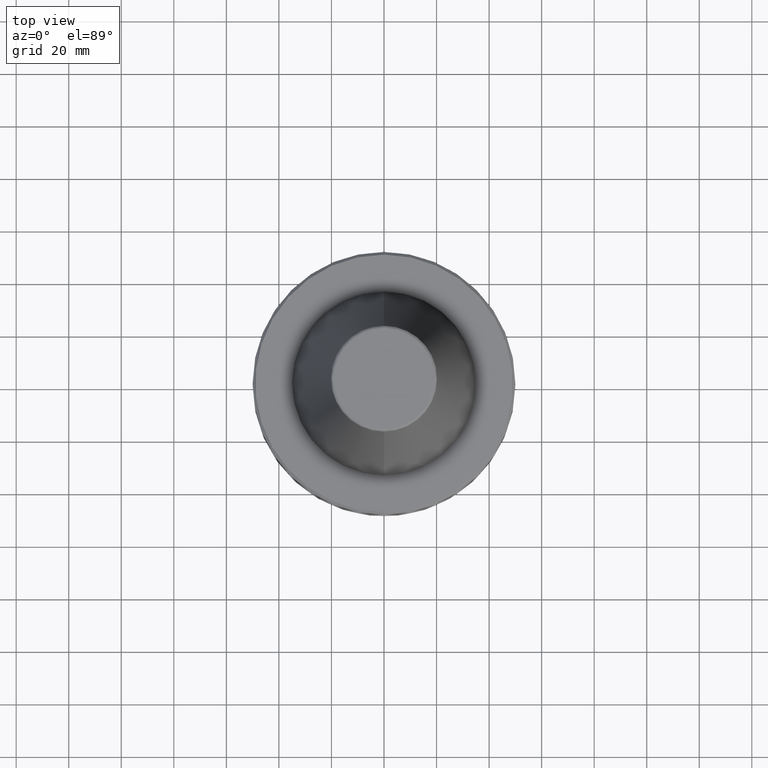
[diagram: clean part render]
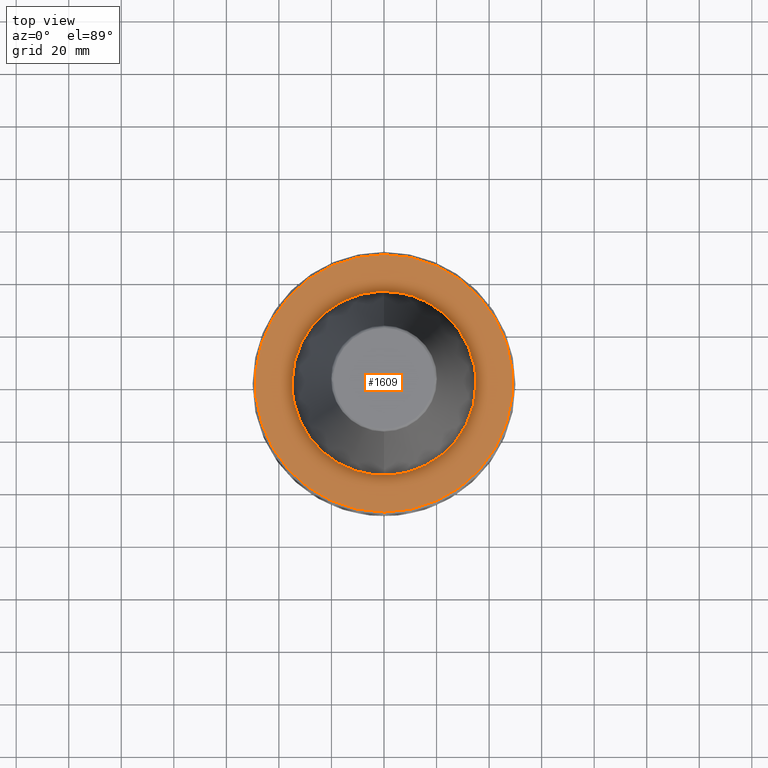
[diagram: same view with one face highlighted and labeled with its STEP entity id]
A machine part, top view. The second image highlights one B-rep face of the part: STEP entity #1609.
In plain terms, the highlighted planar face has unit normal (0, 0, -1).
Its self-contained STEP definition (entity closure, byte-faithful):
#226 = DIRECTION ( 'NONE',  ( -1.000000000000000000, 0.0000000000000000000, -0.0000000000000000000 ) ) ;
#229 = DIRECTION ( 'NONE',  ( 0.0000000000000000000, 0.0000000000000000000, -1.000000000000000000 ) ) ;
#232 = CARTESIAN_POINT ( 'NONE',  ( 0.0000000000000000000, 35.00000000000000000, -3.000000000000002700 ) ) ;
#234 = PLANE ( 'NONE',  #1378 ) ;
#334 = ORIENTED_EDGE ( 'NONE', *, *, #2133, .T. ) ;
#372 = CARTESIAN_POINT ( 'NONE',  ( 35.00000000000000000, 0.0000000000000000000, -3.000000000000002700 ) ) ;
#424 = ORIENTED_EDGE ( 'NONE', *, *, #1793, .F. ) ;
#617 = VERTEX_POINT ( 'NONE', #1293 ) ;
#691 = AXIS2_PLACEMENT_3D ( 'NONE', #2169, #2608, #1261 ) ;
#801 = FACE_BOUND ( 'NONE', #2434, .T. ) ;
#822 = B_SPLINE_CURVE_WITH_KNOTS ( 'NONE', 3,
 ( #1914, #2162, #2508, #2239, #2586, #2623, #2275, #2301, #2291, #2468, #2192, #2191, #2308, #2285, #2276, #2495, #2635, #2465, #1816, #1852, #1691, #2570, #2403, #2401, #2399, #2236, #2232, #1955, #2650, #2685, #2698, #1960, #1965, #1941, #1937, #1931, #1927, #1925, #1920, #1814, #1884, #1886, #1877, #1875, #1874, #1871, #1867, #1863, #1859, #1854, #1703, #1657, #1725, #1674, #1713, #2449, #1695, #1701, #1716, #1718, #1664, #2062, #2058, #2055, #2074, #2070, #2064, #2097, #2079, #2077, #1792, #1729, #1733, #1735, #2010, #1622, #1679, #1719, #2443, #1686, #2051, #2052, #1630, #1743, #1746, #1749, #1751, #1752, #2015, #2014, #2011, #2026, #1991, #1988, #1981, #2002, #2000, #1998, #2007, #2006, #2004, #2022, #2020, #2045, #2040, #2038, #1755, #1759, #1763, #1766, #1772, #1774, #1779, #1780 ),
 .UNSPECIFIED., .F., .F.,
 ( 4, 1, 1, 1, 1, 1, 2, 2, 1, 1, 1, 1, 1, 2, 2, 1, 1, 1, 1, 2, 2, 2, 1, 1, 1, 1, 2, 2, 1, 1, 1, 1, 1, 2, 2, 1, 1, 1, 1, 1, 2, 2, 2, 1, 1, 1, 1, 1, 2, 2, 1, 1, 1, 1, 1, 2, 2, 1, 1, 1, 1, 2, 2, 2, 1, 1, 1, 1, 2, 2, 1, 1, 1, 1, 1, 2, 2, 1, 1, 1, 1, 1, 2, 2, 4 ),
 ( 0.0000000000000000000, 0.03124999999999663500, 0.04687499999999496200, 0.05468749999999411600, 0.05859374999999367900, 0.06054687499999345700, 0.06152343749999333200, 0.06249999999999320700, 0.09374999999998945300, 0.1093749999999875700, 0.1171874999999866100, 0.1210937499999861100, 0.1230468749999859300, 0.1240234374999858700, 0.1249999999999858000, 0.1562499999999837400, 0.1718749999999827600, 0.1796874999999822900, 0.1835937499999820700, 0.1855468749999819900, 0.1874999999999819000, 0.2499999999999803500, 0.2812499999999796300, 0.2968749999999792900, 0.3046874999999791800, 0.3085937499999790700, 0.3105468749999791300, 0.3124999999999791300, 0.3437499999999789600, 0.3593749999999787900, 0.3671874999999787400, 0.3710937499999786800, 0.3730468749999786300, 0.3740234374999786300, 0.3749999999999786300, 0.4062499999999783500, 0.4218749999999781800, 0.4296874999999780200, 0.4335937499999780200, 0.4355468749999780200, 0.4365234374999780200, 0.4374999999999780200, 0.4999999999999799000, 0.5312499999999809000, 0.5468749999999813500, 0.5546874999999815700, 0.5585937499999816800, 0.5605468749999816800, 0.5615234374999816800, 0.5624999999999816800, 0.5937499999999827900, 0.6093749999999832400, 0.6171874999999834600, 0.6210937499999836800, 0.6230468749999837900, 0.6240234374999837900, 0.6249999999999837900, 0.6562499999999863400, 0.6718749999999875700, 0.6796874999999883400, 0.6835937499999886800, 0.6855468749999887900, 0.6874999999999889000, 0.7499999999999902300, 0.7812499999999909000, 0.7968749999999912300, 0.8046874999999913400, 0.8085937499999915600, 0.8105468749999916700, 0.8124999999999917800, 0.8437499999999927800, 0.8593749999999931200, 0.8671874999999933400, 0.8710937499999934500, 0.8730468749999934500, 0.8740234374999934500, 0.8749999999999934500, 0.9062499999999948900, 0.9218749999999955600, 0.9296874999999958900, 0.9335937499999961100, 0.9355468749999963400, 0.9365234374999963400, 0.9374999999999963400, 1.000000000000000000 ),
 .UNSPECIFIED. ) ;
#892 = DIRECTION ( 'NONE',  ( 0.0000000000000000000, 1.000000000000000000, 8.850629979473505400E-018 ) ) ;
#895 = DIRECTION ( 'NONE',  ( 0.0000000000000000000, 8.673617379884035500E-018, -1.000000000000000000 ) ) ;
#898 = CARTESIAN_POINT ( 'NONE',  ( 0.0000000000000000000, -8.673617379884097100E-018, -2.999999999999988900 ) ) ;
#933 = CARTESIAN_POINT ( 'NONE',  ( -35.00000000000000000, 5.347315839772332600E-015, -3.000000000000002700 ) ) ;
#1003 = VERTEX_POINT ( 'NONE', #933 ) ;
#1015 = EDGE_CURVE ( 'NONE', #617, #2081, #1122, .T. ) ;
#1122 = CIRCLE ( 'NONE', #2524, 49.00000000000000000 ) ;
#1195 = CARTESIAN_POINT ( 'NONE',  ( 35.00000000000000000, 0.0000000000000000000, -3.000000000000002700 ) ) ;
#1200 = CARTESIAN_POINT ( 'NONE',  ( 35.00000000000001400, 2.140594193977155800, -3.000000000000004400 ) ) ;
#1202 = CARTESIAN_POINT ( 'NONE',  ( 34.80522929819337500, 4.263496472118814200, -3.000000000000003600 ) ) ;
#1205 = CARTESIAN_POINT ( 'NONE',  ( 34.40960131014864500, 6.401600746336099800, -3.000000000000002700 ) ) ;
#1207 = CARTESIAN_POINT ( 'NONE',  ( 34.40273028201460200, 6.438440412627483200, -3.000000000000001300 ) ) ;
#1210 = CARTESIAN_POINT ( 'NONE',  ( 34.38961785484501400, 6.508129744888179900, -3.000000000000003100 ) ) ;
#1212 = CARTESIAN_POINT ( 'NONE',  ( 34.36979439948648000, 6.612619497337481000, -3.000000000000003600 ) ) ;
#1214 = CARTESIAN_POINT ( 'NONE',  ( 34.32245596808781600, 6.856119198127095700, -3.000000000000003600 ) ) ;
#1218 = CARTESIAN_POINT ( 'NONE',  ( 34.22344429637538400, 7.341879713337862200, -3.000000000000003100 ) ) ;
#1221 = CARTESIAN_POINT ( 'NONE',  ( 34.00808171729007500, 8.308445198285568300, -3.000000000000002700 ) ) ;
#1227 = CARTESIAN_POINT ( 'NONE',  ( 33.50799961647769000, 10.22175398628584700, -3.000000000000003100 ) ) ;
#1230 = CARTESIAN_POINT ( 'NONE',  ( 32.96046019982407000, 11.82775206418003900, -3.000000000000003600 ) ) ;
#1232 = CARTESIAN_POINT ( 'NONE',  ( 32.52953211022760600, 12.91630117124322500, -3.000000000000002700 ) ) ;
#1237 = CARTESIAN_POINT ( 'NONE',  ( 32.51533340697245900, 12.95201044293895400, -3.000000000000004000 ) ) ;
#1239 = CARTESIAN_POINT ( 'NONE',  ( 32.48792099547436200, 13.02062589573488800, -3.000000000000003100 ) ) ;
#1245 = CARTESIAN_POINT ( 'NONE',  ( 32.44664709694176700, 13.12346891945131600, -3.000000000000003100 ) ) ;
#1246 = CARTESIAN_POINT ( 'NONE',  ( 32.34925436470079100, 13.36287488644736900, -3.000000000000003100 ) ) ;
#1249 = CARTESIAN_POINT ( 'NONE',  ( 32.15012102422590300, 13.83944246707036300, -3.000000000000003100 ) ) ;
#1251 = CARTESIAN_POINT ( 'NONE',  ( 31.73446283930433200, 14.78360021483987700, -3.000000000000003600 ) ) ;
#1253 = CARTESIAN_POINT ( 'NONE',  ( 30.83358045357390900, 16.63600605647301800, -3.000000000000002700 ) ) ;
#1256 = CARTESIAN_POINT ( 'NONE',  ( 29.94213952428398800, 18.16222308546275200, -3.000000000000003100 ) ) ;
#1258 = CARTESIAN_POINT ( 'NONE',  ( 29.25438685317584800, 19.21422376116857600, -3.000000000000003100 ) ) ;
#1261 = DIRECTION ( 'NONE',  ( 0.0000000000000000000, 1.000000000000000000, 8.850629979473505400E-018 ) ) ;
#1265 = CARTESIAN_POINT ( 'NONE',  ( 29.21203108228115800, 19.27857015345532700, -3.000000000000004000 ) ) ;
#1270 = CARTESIAN_POINT ( 'NONE',  ( 29.12865266610268500, 19.40434002404001000, -3.000000000000003100 ) ) ;
#1271 = CARTESIAN_POINT ( 'NONE',  ( 29.00301843602813900, 19.59253591552640500, -3.000000000000003600 ) ) ;
#1274 = CARTESIAN_POINT ( 'NONE',  ( 28.70590565853973100, 20.02844726159348800, -3.000000000000002200 ) ) ;
#1277 = CARTESIAN_POINT ( 'NONE',  ( 28.09581514097168100, 20.88742035078972100, -3.000000000000003100 ) ) ;
#1283 = CARTESIAN_POINT ( 'NONE',  ( 26.81217425547059100, 22.55396811743030800, -3.000000000000002700 ) ) ;
#1290 = CARTESIAN_POINT ( 'NONE',  ( 25.60312232441545500, 23.89432606869046400, -3.000000000000002700 ) ) ;
#1292 = CARTESIAN_POINT ( 'NONE',  ( 23.03996737575660700, 26.45755988720657500, -3.000000000000001800 ) ) ;
#1293 = CARTESIAN_POINT ( 'NONE',  ( 6.062001655779398500E-015, -49.00000000000000000, -2.999999999999989300 ) ) ;
#1294 = CARTESIAN_POINT ( 'NONE',  ( 21.17500700307416400, 27.97242343704284200, -3.000000000000003100 ) ) ;
#1296 = CARTESIAN_POINT ( 'NONE',  ( 19.08913306739893300, 29.33616850064062100, -3.000000000000003600 ) ) ;
#1299 = CARTESIAN_POINT ( 'NONE',  ( 19.02850814313557100, 29.37552809603019800, -3.000000000000003100 ) ) ;
#1302 = CARTESIAN_POINT ( 'NONE',  ( 18.90435246569067500, 29.45559311873539300, -3.000000000000002700 ) ) ;
#1303 = CARTESIAN_POINT ( 'NONE',  ( 18.71779649742284900, 29.57507047212097700, -3.000000000000003100 ) ) ;
#1306 = CARTESIAN_POINT ( 'NONE',  ( 18.28024207342790300, 29.84950969864856100, -3.000000000000003100 ) ) ;
#1309 = CARTESIAN_POINT ( 'NONE',  ( 17.39610456662463300, 30.38102309288199300, -3.000000000000003100 ) ) ;
#1310 = CARTESIAN_POINT ( 'NONE',  ( 15.59171491776445100, 31.37458964606188500, -3.000000000000002700 ) ) ;
#1315 = CARTESIAN_POINT ( 'NONE',  ( 13.98318441544959400, 32.10714343115270700, -3.000000000000003100 ) ) ;
#1317 = CARTESIAN_POINT ( 'NONE',  ( 12.84894391026604800, 32.55619825924858200, -3.000000000000002700 ) ) ;
#1323 = CARTESIAN_POINT ( 'NONE',  ( 12.81734826737285200, 32.56864976374770000, -3.000000000000003100 ) ) ;
#1326 = CARTESIAN_POINT ( 'NONE',  ( 12.75133696151221100, 32.59455431796963900, -3.000000000000003600 ) ) ;
#1331 = CARTESIAN_POINT ( 'NONE',  ( 12.65227526415329300, 32.63325647696184700, -3.000000000000002700 ) ) ;
#1333 = CARTESIAN_POINT ( 'NONE',  ( 12.42081813367351900, 32.72247880822539700, -3.000000000000002700 ) ) ;
#1335 = CARTESIAN_POINT ( 'NONE',  ( 11.95665119281142300, 32.89659264521277000, -3.000000000000003600 ) ) ;
#1338 = CARTESIAN_POINT ( 'NONE',  ( 11.02330659147702200, 33.22749701702875300, -3.000000000000002700 ) ) ;
#1340 = CIRCLE ( 'NONE', #691, 49.00000000000000000 ) ;
#1343 = CARTESIAN_POINT ( 'NONE',  ( 9.136574510367397700, 33.82001255202570200, -3.000000000000002700 ) ) ;
#1345 = CARTESIAN_POINT ( 'NONE',  ( 7.485016363517791800, 34.20909465293439000, -3.000000000000003100 ) ) ;
#1351 = CARTESIAN_POINT ( 'NONE',  ( 6.333822161640920700, 34.42214393338153400, -3.000000000000002700 ) ) ;
#1354 = CARTESIAN_POINT ( 'NONE',  ( 6.302931150571177800, 34.42781250607494300, -3.000000000000003100 ) ) ;
#1356 = CARTESIAN_POINT ( 'NONE',  ( 6.237142119969139000, 34.43979448700921600, -3.000000000000003100 ) ) ;
#1358 = CARTESIAN_POINT ( 'NONE',  ( 6.138445227317941300, 34.45762482785007600, -3.000000000000003100 ) ) ;
#1360 = CARTESIAN_POINT ( 'NONE',  ( 5.908059050561483600, 34.49823054255489300, -3.000000000000002200 ) ) ;
#1369 = CARTESIAN_POINT ( 'NONE',  ( 5.446912988100579300, 34.57544831626905300, -3.000000000000001800 ) ) ;
#1371 = CARTESIAN_POINT ( 'NONE',  ( 4.523126027386807900, 34.71390924091556900, -3.000000000000002700 ) ) ;
#1373 = CARTESIAN_POINT ( 'NONE',  ( 2.669572762791388300, 34.92693259908127600, -3.000000000000002700 ) ) ;
#1377 = CARTESIAN_POINT ( 'NONE',  ( 1.070562519136141000, 34.99998377843357400, -3.000000000000002700 ) ) ;
#1378 = AXIS2_PLACEMENT_3D ( 'NONE', #232, #229, #226 ) ;
#1379 = CARTESIAN_POINT ( 'NONE',  ( -2.141125038272311700, 35.00003244313286600, -3.000000000000002700 ) ) ;
#1381 = CARTESIAN_POINT ( 'NONE',  ( -4.263321196565859100, 34.80526173062684600, -3.000000000000002200 ) ) ;
#1384 = CARTESIAN_POINT ( 'NONE',  ( -6.401603485016614100, 34.40960080339188200, -3.000000000000002700 ) ) ;
#1389 = CARTESIAN_POINT ( 'NONE',  ( -6.438440412630628300, 34.40273028201387700, -3.000000000000003600 ) ) ;
#1392 = CARTESIAN_POINT ( 'NONE',  ( -6.508129744894392700, 34.38961785484356400, -3.000000000000003600 ) ) ;
#1393 = CARTESIAN_POINT ( 'NONE',  ( -6.612619497348228800, 34.36979439948396500, -3.000000000000003600 ) ) ;
#1397 = CARTESIAN_POINT ( 'NONE',  ( -6.856119198147877300, 34.32245596808292700, -3.000000000000003100 ) ) ;
#1400 = CARTESIAN_POINT ( 'NONE',  ( -7.341879713376658700, 34.22344429636625300, -3.000000000000003100 ) ) ;
#1403 = CARTESIAN_POINT ( 'NONE',  ( -8.308445198352108800, 34.00808171727444300, -3.000000000000002700 ) ) ;
#1410 = CARTESIAN_POINT ( 'NONE',  ( -10.22175398637455700, 33.50799961645684300, -3.000000000000003600 ) ) ;
#1412 = CARTESIAN_POINT ( 'NONE',  ( -11.82775206423072900, 32.96046019981214700, -3.000000000000003100 ) ) ;
#1413 = CARTESIAN_POINT ( 'NONE',  ( -12.91630117124163800, 32.52953211022797600, -3.000000000000002700 ) ) ;
#1415 = CARTESIAN_POINT ( 'NONE',  ( -12.95201044293867400, 32.51533340697202600, -3.000000000000003600 ) ) ;
#1418 = CARTESIAN_POINT ( 'NONE',  ( -13.02062589573434300, 32.48792099547353000, -3.000000000000002700 ) ) ;
#1424 = CARTESIAN_POINT ( 'NONE',  ( -13.12346891945037800, 32.44664709694033200, -3.000000000000003100 ) ) ;
#1427 = CARTESIAN_POINT ( 'NONE',  ( -13.36287488644556200, 32.34925436469802700, -3.000000000000003100 ) ) ;
#1435 = CARTESIAN_POINT ( 'NONE',  ( -13.83944246706697900, 32.15012102422075900, -3.000000000000002200 ) ) ;
#1436 = CARTESIAN_POINT ( 'NONE',  ( -14.78360021483408600, 31.73446283929548500, -3.000000000000003100 ) ) ;
#1439 = CARTESIAN_POINT ( 'NONE',  ( -16.63600605646529500, 30.83358045356212400, -3.000000000000003600 ) ) ;
#1444 = CARTESIAN_POINT ( 'NONE',  ( -18.16222308545833600, 29.94213952427724800, -3.000000000000002200 ) ) ;
#1447 = CARTESIAN_POINT ( 'NONE',  ( -19.21422376116883500, 29.25438685317628500, -3.000000000000003100 ) ) ;
#1449 = CARTESIAN_POINT ( 'NONE',  ( -19.27857015344629200, 29.21203108228828800, -3.000000000000003100 ) ) ;
#1454 = CARTESIAN_POINT ( 'NONE',  ( -19.40434002402238500, 29.12865266611658700, -3.000000000000003600 ) ) ;
#1456 = CARTESIAN_POINT ( 'NONE',  ( -19.59253591549630600, 29.00301843605185700, -3.000000000000002700 ) ) ;
#1458 = CARTESIAN_POINT ( 'NONE',  ( -20.02844726153733400, 28.70590565858399400, -3.000000000000003100 ) ) ;
#1460 = CARTESIAN_POINT ( 'NONE',  ( -20.88742035069342500, 28.09581514104753500, -3.000000000000003100 ) ) ;
#1462 = CARTESIAN_POINT ( 'NONE',  ( -22.55396811730192000, 26.81217425557173000, -3.000000000000002700 ) ) ;
#1466 = CARTESIAN_POINT ( 'NONE',  ( -23.89432606861711500, 25.60312232447323300, -3.000000000000003100 ) ) ;
#1473 = CARTESIAN_POINT ( 'NONE',  ( -26.45755988735327300, 23.03996737564107600, -3.000000000000002700 ) ) ;
#1478 = CARTESIAN_POINT ( 'NONE',  ( -27.97242343694205100, 21.17500700320606600, -3.000000000000003100 ) ) ;
#1480 = CARTESIAN_POINT ( 'NONE',  ( -29.33616850064376500, 19.08913306739479400, -3.000000000000003100 ) ) ;
#1485 = VERTEX_POINT ( 'NONE', #372 ) ;
#1486 = CARTESIAN_POINT ( 'NONE',  ( -29.37552809603019800, 19.02850814313690000, -3.000000000000003600 ) ) ;
#1492 = CARTESIAN_POINT ( 'NONE',  ( -29.45559311873539700, 18.90435246569326800, -3.000000000000003100 ) ) ;
#1498 = CARTESIAN_POINT ( 'NONE',  ( -29.57507047212097700, 18.71779649742729400, -3.000000000000002200 ) ) ;
#1500 = CARTESIAN_POINT ( 'NONE',  ( -29.84950969864856100, 18.28024207343620600, -3.000000000000003100 ) ) ;
#1509 = CARTESIAN_POINT ( 'NONE',  ( -30.38102309288202100, 17.39610456663885400, -3.000000000000003100 ) ) ;
#1513 = CARTESIAN_POINT ( 'NONE',  ( -31.37458964606191400, 15.59171491778343300, -3.000000000000003100 ) ) ;
#1514 = CARTESIAN_POINT ( 'NONE',  ( -32.10714343115271400, 13.98318441546045300, -3.000000000000002700 ) ) ;
#1515 = CARTESIAN_POINT ( 'NONE',  ( -32.55619825924858200, 12.84894391026571500, -3.000000000000003100 ) ) ;
#1520 = CARTESIAN_POINT ( 'NONE',  ( -32.56864976374851000, 12.81734826737019400, -3.000000000000002700 ) ) ;
#1524 = CARTESIAN_POINT ( 'NONE',  ( -32.59455431797121600, 12.75133696150694700, -3.000000000000002700 ) ) ;
#1526 = CARTESIAN_POINT ( 'NONE',  ( -32.63325647696455400, 12.65227526414419400, -3.000000000000003100 ) ) ;
#1529 = CARTESIAN_POINT ( 'NONE',  ( -32.72247880823064700, 12.42081813365590500, -3.000000000000002700 ) ) ;
#1531 = CARTESIAN_POINT ( 'NONE',  ( -32.89659264522261900, 11.95665119277852600, -3.000000000000003100 ) ) ;
#1533 = CARTESIAN_POINT ( 'NONE',  ( -33.22749701704564300, 11.02330659142064700, -3.000000000000002700 ) ) ;
#1536 = CARTESIAN_POINT ( 'NONE',  ( -33.82001255204822600, 9.136574510292236400, -3.000000000000003100 ) ) ;
#1538 = CARTESIAN_POINT ( 'NONE',  ( -34.20909465294723600, 7.485016363474851000, -3.000000000000003100 ) ) ;
#1540 = CARTESIAN_POINT ( 'NONE',  ( -34.42214393338114300, 6.333822161642274300, -3.000000000000003100 ) ) ;
#1542 = CARTESIAN_POINT ( 'NONE',  ( -34.42781351200215300, 6.302925715124958500, -3.000000000000003600 ) ) ;
#1545 = CARTESIAN_POINT ( 'NONE',  ( -34.43979647510160200, 6.237131377473057900, -3.000000000000002700 ) ) ;
#1548 = CARTESIAN_POINT ( 'NONE',  ( -34.45762826542810600, 6.138426652643423700, -3.000000000000002700 ) ) ;
#1550 = CARTESIAN_POINT ( 'NONE',  ( -34.49823719593176500, 5.908023099578546300, -3.000000000000003600 ) ) ;
#1553 = CARTESIAN_POINT ( 'NONE',  ( -34.57546073590584300, 5.446845879599084000, -3.000000000000002700 ) ) ;
#1555 = CARTESIAN_POINT ( 'NONE',  ( -34.71393053172151600, 4.523010984241379300, -3.000000000000003100 ) ) ;
#1558 = CARTESIAN_POINT ( 'NONE',  ( -34.92696098682252900, 2.669419371930827500, -3.000000000000002700 ) ) ;
#1575 = CARTESIAN_POINT ( 'NONE',  ( -35.00000000000000000, 5.347315839772332600E-015, -3.000000000000002700 ) ) ;
#1580 = CARTESIAN_POINT ( 'NONE',  ( -35.00000000000001400, 1.070474867215826600, -3.000000000000002700 ) ) ;
#1609 = ADVANCED_FACE ( 'NONE', ( #801, #2664 ), #234, .F. ) ;
#1622 = CARTESIAN_POINT ( 'NONE',  ( -13.98318441543271400, -32.10714343117086100, -3.000000000000002700 ) ) ;
#1630 = CARTESIAN_POINT ( 'NONE',  ( -19.08913306739620100, -29.33616850064283500, -3.000000000000001800 ) ) ;
#1657 = CARTESIAN_POINT ( 'NONE',  ( 6.612619497362948600, -34.36979439948081000, -3.000000000000002700 ) ) ;
#1664 = CARTESIAN_POINT ( 'NONE',  ( -5.446912988021364500, -34.57544831627442500, -3.000000000000002700 ) ) ;
#1674 = CARTESIAN_POINT ( 'NONE',  ( 6.438440412634939500, -34.40273028201292500, -3.000000000000002200 ) ) ;
#1679 = CARTESIAN_POINT ( 'NONE',  ( -15.59171491773484600, -31.37458964609368600, -3.000000000000003100 ) ) ;
#1686 = CARTESIAN_POINT ( 'NONE',  ( -18.71779649741590400, -29.57507047212841700, -3.000000000000001800 ) ) ;
#1691 = CARTESIAN_POINT ( 'NONE',  ( 31.37458964605490400, -15.59171491779412700, -3.000000000000002200 ) ) ;
#1695 = CARTESIAN_POINT ( 'NONE',  ( 2.141125038065310200, -35.00003244311884700, -3.000000000000002200 ) ) ;
#1701 = CARTESIAN_POINT ( 'NONE',  ( -1.070562519032676000, -34.99998377844058000, -3.000000000000002200 ) ) ;
#1703 = CARTESIAN_POINT ( 'NONE',  ( 6.856119198176373600, -34.32245596807681000, -3.000000000000003100 ) ) ;
#1713 = CARTESIAN_POINT ( 'NONE',  ( 6.401603485015114900, -34.40960080339209500, -3.000000000000003100 ) ) ;
#1716 = CARTESIAN_POINT ( 'NONE',  ( -2.669572762610316700, -34.92693259909351900, -3.000000000000003600 ) ) ;
#1718 = CARTESIAN_POINT ( 'NONE',  ( -4.523126027250998300, -34.71390924092476400, -3.000000000000002700 ) ) ;
#1719 = CARTESIAN_POINT ( 'NONE',  ( -17.39610456660242100, -30.38102309290583100, -3.000000000000003100 ) ) ;
#1725 = CARTESIAN_POINT ( 'NONE',  ( 6.508129744902905900, -34.38961785484172400, -3.000000000000002700 ) ) ;
#1729 = CARTESIAN_POINT ( 'NONE',  ( -12.65227526412929200, -32.63325647696902400, -3.000000000000002700 ) ) ;
#1733 = CARTESIAN_POINT ( 'NONE',  ( -12.75133696149833700, -32.59455431797377400, -3.000000000000002700 ) ) ;
#1735 = CARTESIAN_POINT ( 'NONE',  ( -12.81734826736584900, -32.56864976374979600, -3.000000000000003100 ) ) ;
#1743 = CARTESIAN_POINT ( 'NONE',  ( -21.17500700316109500, -27.97242343697145700, -3.000000000000002700 ) ) ;
#1746 = CARTESIAN_POINT ( 'NONE',  ( -23.03996737564074900, -26.45755988733801100, -3.000000000000002700 ) ) ;
#1749 = CARTESIAN_POINT ( 'NONE',  ( -25.60312232447337900, -23.89432606862475700, -3.000000000000004000 ) ) ;
#1751 = CARTESIAN_POINT ( 'NONE',  ( -26.81217425557199300, -22.55396811731530300, -3.000000000000002700 ) ) ;
#1752 = CARTESIAN_POINT ( 'NONE',  ( -28.09581514104771900, -20.88742035070345100, -3.000000000000002700 ) ) ;
#1755 = CARTESIAN_POINT ( 'NONE',  ( -34.32245596807793900, -6.856119198155432100, -3.000000000000003100 ) ) ;
#1759 = CARTESIAN_POINT ( 'NONE',  ( -34.36979439948136400, -6.612619497352139500, -3.000000000000001300 ) ) ;
#1763 = CARTESIAN_POINT ( 'NONE',  ( -34.38961785484204400, -6.508129744896657500, -3.000000000000002200 ) ) ;
#1766 = CARTESIAN_POINT ( 'NONE',  ( -34.40273028201311700, -6.438440412631782000, -3.000000000000002700 ) ) ;
#1772 = CARTESIAN_POINT ( 'NONE',  ( -34.40960131014864500, -6.401600746334303900, -3.000000000000002700 ) ) ;
#1774 = CARTESIAN_POINT ( 'NONE',  ( -34.80522929819336000, -4.263496472234200100, -3.000000000000003600 ) ) ;
#1779 = CARTESIAN_POINT ( 'NONE',  ( -35.00000000000000700, -2.140594194092448900, -3.000000000000002700 ) ) ;
#1780 = CARTESIAN_POINT ( 'NONE',  ( -35.00000000000000000, 5.347315839772332600E-015, -3.000000000000002700 ) ) ;
#1792 = CARTESIAN_POINT ( 'NONE',  ( -12.42081813362705100, -32.72247880823924500, -3.000000000000002200 ) ) ;
#1793 = EDGE_CURVE ( 'NONE', #2081, #617, #1340, .T. ) ;
#1814 = CARTESIAN_POINT ( 'NONE',  ( 14.78360021488826500, -31.73446283925677500, -3.000000000000002700 ) ) ;
#1816 = CARTESIAN_POINT ( 'NONE',  ( 32.55619825924868100, -12.84894391026552900, -3.000000000000002200 ) ) ;
#1852 = CARTESIAN_POINT ( 'NONE',  ( 32.10714343114872800, -13.98318441546657300, -3.000000000000002700 ) ) ;
#1854 = CARTESIAN_POINT ( 'NONE',  ( 7.341879713429841900, -34.22344429635485600, -3.000000000000002700 ) ) ;
#1859 = CARTESIAN_POINT ( 'NONE',  ( 8.308445198443276800, -34.00808171725491700, -3.000000000000002700 ) ) ;
#1863 = CARTESIAN_POINT ( 'NONE',  ( 10.22175398649610400, -33.50799961643082300, -3.000000000000003600 ) ) ;
#1867 = CARTESIAN_POINT ( 'NONE',  ( 11.82775206430019400, -32.96046019979726800, -3.000000000000003100 ) ) ;
#1871 = CARTESIAN_POINT ( 'NONE',  ( 12.91630117123947700, -32.52953211022842300, -3.000000000000002700 ) ) ;
#1874 = CARTESIAN_POINT ( 'NONE',  ( 12.95201044294124100, -32.51533340697019300, -3.000000000000003100 ) ) ;
#1875 = CARTESIAN_POINT ( 'NONE',  ( 13.02062589573940900, -32.48792099546991400, -3.000000000000002700 ) ) ;
#1877 = CARTESIAN_POINT ( 'NONE',  ( 13.12346891945913500, -32.44664709693408600, -3.000000000000003600 ) ) ;
#1884 = CARTESIAN_POINT ( 'NONE',  ( 13.83944246709859300, -32.15012102419817100, -3.000000000000003100 ) ) ;
#1886 = CARTESIAN_POINT ( 'NONE',  ( 13.36287488646249200, -32.34925436468589100, -3.000000000000001800 ) ) ;
#1914 = CARTESIAN_POINT ( 'NONE',  ( 35.00000000000000000, 0.0000000000000000000, -3.000000000000002700 ) ) ;
#1920 = CARTESIAN_POINT ( 'NONE',  ( 16.63600605653752500, -30.83358045351049600, -3.000000000000002700 ) ) ;
#1925 = CARTESIAN_POINT ( 'NONE',  ( 18.16222308549961200, -29.94213952424776100, -3.000000000000003100 ) ) ;
#1927 = CARTESIAN_POINT ( 'NONE',  ( 19.21422376116625200, -29.25438685317812900, -3.000000000000002200 ) ) ;
#1931 = CARTESIAN_POINT ( 'NONE',  ( 19.27857015345090000, -29.21203108228558400, -3.000000000000001800 ) ) ;
#1937 = CARTESIAN_POINT ( 'NONE',  ( 19.40434002403140200, -29.12865266611132900, -3.000000000000003100 ) ) ;
#1941 = CARTESIAN_POINT ( 'NONE',  ( 19.59253591551169600, -29.00301843604283300, -3.000000000000001800 ) ) ;
#1955 = CARTESIAN_POINT ( 'NONE',  ( 27.97242343700085600, -21.17500700311615700, -3.000000000000003100 ) ) ;
#1960 = CARTESIAN_POINT ( 'NONE',  ( 20.88742035074269100, -28.09581514101870400, -3.000000000000002700 ) ) ;
#1965 = CARTESIAN_POINT ( 'NONE',  ( 20.02844726156606800, -28.70590565856717900, -3.000000000000003100 ) ) ;
#1981 = CARTESIAN_POINT ( 'NONE',  ( -30.83358045359825200, -16.63600605639656000, -3.000000000000003100 ) ) ;
#1988 = CARTESIAN_POINT ( 'NONE',  ( -29.94213952429791100, -18.16222308541903300, -3.000000000000003100 ) ) ;
#1991 = CARTESIAN_POINT ( 'NONE',  ( -29.25438685317497400, -19.21422376117129400, -3.000000000000002200 ) ) ;
#1998 = CARTESIAN_POINT ( 'NONE',  ( -32.34925436470648200, -13.36287488642944300, -3.000000000000001800 ) ) ;
#2000 = CARTESIAN_POINT ( 'NONE',  ( -32.15012102423657600, -13.83944246703690000, -3.000000000000002700 ) ) ;
#2002 = CARTESIAN_POINT ( 'NONE',  ( -31.73446283932258200, -14.78360021478252100, -3.000000000000002700 ) ) ;
#2004 = CARTESIAN_POINT ( 'NONE',  ( -32.51533340697329800, -12.95201044293623500, -3.000000000000002700 ) ) ;
#2006 = CARTESIAN_POINT ( 'NONE',  ( -32.48792099547606700, -13.02062589572952200, -3.000000000000002200 ) ) ;
#2007 = CARTESIAN_POINT ( 'NONE',  ( -32.44664709694470900, -13.12346891944205400, -3.000000000000002700 ) ) ;
#2010 = CARTESIAN_POINT ( 'NONE',  ( -12.84894391026660200, -32.55619825924799900, -3.000000000000003600 ) ) ;
#2011 = CARTESIAN_POINT ( 'NONE',  ( -29.12865266611660100, -19.40434002402422600, -3.000000000000002700 ) ) ;
#2014 = CARTESIAN_POINT ( 'NONE',  ( -29.00301843605190700, -19.59253591549944000, -3.000000000000003100 ) ) ;
#2015 = CARTESIAN_POINT ( 'NONE',  ( -28.70590565858409700, -20.02844726154317800, -3.000000000000003600 ) ) ;
#2020 = CARTESIAN_POINT ( 'NONE',  ( -32.96046019979995400, -11.82775206424915600, -3.000000000000003100 ) ) ;
#2022 = CARTESIAN_POINT ( 'NONE',  ( -32.52953211022834500, -12.91630117124105800, -3.000000000000002700 ) ) ;
#2026 = CARTESIAN_POINT ( 'NONE',  ( -29.21203108228828800, -19.27857015344723000, -3.000000000000002700 ) ) ;
#2038 = CARTESIAN_POINT ( 'NONE',  ( -34.22344429635691700, -7.341879713390761200, -3.000000000000001800 ) ) ;
#2040 = CARTESIAN_POINT ( 'NONE',  ( -34.00808171725844200, -8.308445198376258400, -3.000000000000002700 ) ) ;
#2045 = CARTESIAN_POINT ( 'NONE',  ( -33.50799961643552600, -10.22175398640678300, -3.000000000000002700 ) ) ;
#2051 = CARTESIAN_POINT ( 'NONE',  ( -18.90435246568660300, -29.45559311873974600, -3.000000000000001800 ) ) ;
#2052 = CARTESIAN_POINT ( 'NONE',  ( -19.02850814313348600, -29.37552809603244300, -3.000000000000003100 ) ) ;
#2055 = CARTESIAN_POINT ( 'NONE',  ( -6.237142119956468300, -34.43979448701008300, -3.000000000000003600 ) ) ;
#2058 = CARTESIAN_POINT ( 'NONE',  ( -6.138445227296025500, -34.45762482785154600, -3.000000000000003600 ) ) ;
#2062 = CARTESIAN_POINT ( 'NONE',  ( -5.908059050519048200, -34.49823054255777100, -3.000000000000002700 ) ) ;
#2064 = CARTESIAN_POINT ( 'NONE',  ( -7.485016363404477100, -34.20909465296822600, -3.000000000000002700 ) ) ;
#2070 = CARTESIAN_POINT ( 'NONE',  ( -6.333822161644473400, -34.42214393338047500, -3.000000000000002700 ) ) ;
#2074 = CARTESIAN_POINT ( 'NONE',  ( -6.302931150564769600, -34.42781250607536200, -3.000000000000003100 ) ) ;
#2077 = CARTESIAN_POINT ( 'NONE',  ( -11.95665119272467800, -32.89659264523868400, -3.000000000000002700 ) ) ;
#2079 = CARTESIAN_POINT ( 'NONE',  ( -11.02330659132829500, -33.22749701707316900, -3.000000000000001800 ) ) ;
#2081 = VERTEX_POINT ( 'NONE', #2598 ) ;
#2097 = CARTESIAN_POINT ( 'NONE',  ( -9.136574510169092300, -33.82001255208494700, -3.000000000000003100 ) ) ;
#2133 = EDGE_CURVE ( 'NONE', #1485, #1003, #822, .T. ) ;
#2162 = CARTESIAN_POINT ( 'NONE',  ( 35.00000000000000700, -1.070474867208797800, -3.000000000000004000 ) ) ;
#2169 = CARTESIAN_POINT ( 'NONE',  ( 0.0000000000000000000, -8.673617379884097100E-018, -2.999999999999988900 ) ) ;
#2191 = CARTESIAN_POINT ( 'NONE',  ( 33.82001255205042200, -9.136574510293330700, -3.000000000000002200 ) ) ;
#2192 = CARTESIAN_POINT ( 'NONE',  ( 34.20909465294850800, -7.485016363475470900, -3.000000000000004000 ) ) ;
#2232 = CARTESIAN_POINT ( 'NONE',  ( 29.33616850064192500, -19.08913306739760400, -3.000000000000003100 ) ) ;
#2236 = CARTESIAN_POINT ( 'NONE',  ( 29.37552809602970400, -19.02850814313765300, -3.000000000000003100 ) ) ;
#2239 = CARTESIAN_POINT ( 'NONE',  ( 34.71393053172150900, -4.523010984232165300, -3.000000000000003100 ) ) ;
#2275 = CARTESIAN_POINT ( 'NONE',  ( 34.45762826542809200, -6.138426652641929800, -3.000000000000003600 ) ) ;
#2276 = CARTESIAN_POINT ( 'NONE',  ( 32.72247880823116600, -12.42081813365616600, -3.000000000000003100 ) ) ;
#2285 = CARTESIAN_POINT ( 'NONE',  ( 32.89659264522356400, -11.95665119277901800, -3.000000000000003100 ) ) ;
#2291 = CARTESIAN_POINT ( 'NONE',  ( 34.42781351200215300, -6.302925715124505500, -3.000000000000003600 ) ) ;
#2301 = CARTESIAN_POINT ( 'NONE',  ( 34.43979647510159500, -6.237131377472181300, -3.000000000000002700 ) ) ;
#2308 = CARTESIAN_POINT ( 'NONE',  ( 33.22749701704729800, -11.02330659142144900, -3.000000000000002200 ) ) ;
#2387 = EDGE_CURVE ( 'NONE', #1003, #1485, #2550, .T. ) ;
#2399 = CARTESIAN_POINT ( 'NONE',  ( 29.45559311873443400, -18.90435246569474300, -3.000000000000003100 ) ) ;
#2401 = CARTESIAN_POINT ( 'NONE',  ( 29.57507047211932900, -18.71779649742980200, -3.000000000000003100 ) ) ;
#2403 = CARTESIAN_POINT ( 'NONE',  ( 29.84950969864552300, -18.28024207344085600, -3.000000000000003600 ) ) ;
#2434 = EDGE_LOOP ( 'NONE', ( #334, #2731 ) ) ;
#2443 = CARTESIAN_POINT ( 'NONE',  ( -18.28024207341493600, -29.84950969866246200, -3.000000000000002700 ) ) ;
#2449 = CARTESIAN_POINT ( 'NONE',  ( 4.263321196662106500, -34.80526173061283400, -3.000000000000001800 ) ) ;
#2465 = CARTESIAN_POINT ( 'NONE',  ( 32.56864976374856700, -12.81734826737023900, -3.000000000000002700 ) ) ;
#2468 = CARTESIAN_POINT ( 'NONE',  ( 34.42214393338109300, -6.333822161642247700, -3.000000000000002200 ) ) ;
#2495 = CARTESIAN_POINT ( 'NONE',  ( 32.63325647696483100, -12.65227526414434500, -3.000000000000003100 ) ) ;
#2503 = EDGE_LOOP ( 'NONE', ( #424, #2726 ) ) ;
#2508 = CARTESIAN_POINT ( 'NONE',  ( 34.92696098682253600, -2.669419371918528400, -3.000000000000003100 ) ) ;
#2524 = AXIS2_PLACEMENT_3D ( 'NONE', #898, #895, #892 ) ;
#2550 = B_SPLINE_CURVE_WITH_KNOTS ( 'NONE', 3,
 ( #1575, #1580, #1558, #1555, #1553, #1550, #1548, #1545, #1542, #1540, #1538, #1536, #1533, #1531, #1529, #1526, #1524, #1520, #1515, #1514, #1513, #1509, #1500, #1498, #1492, #1486, #1480, #1478, #1473, #1466, #1462, #1460, #1458, #1456, #1454, #1449, #1447, #1444, #1439, #1436, #1435, #1427, #1424, #1418, #1415, #1413, #1412, #1410, #1403, #1400, #1397, #1393, #1392, #1389, #1384, #1381, #1379, #1377, #1373, #1371, #1369, #1360, #1358, #1356, #1354, #1351, #1345, #1343, #1338, #1335, #1333, #1331, #1326, #1323, #1317, #1315, #1310, #1309, #1306, #1303, #1302, #1299, #1296, #1294, #1292, #1290, #1283, #1277, #1274, #1271, #1270, #1265, #1258, #1256, #1253, #1251, #1249, #1246, #1245, #1239, #1237, #1232, #1230, #1227, #1221, #1218, #1214, #1212, #1210, #1207, #1205, #1202, #1200, #1195 ),
 .UNSPECIFIED., .F., .F.,
 ( 4, 1, 1, 1, 1, 1, 2, 2, 1, 1, 1, 1, 1, 2, 2, 1, 1, 1, 1, 2, 2, 2, 1, 1, 1, 1, 2, 2, 1, 1, 1, 1, 1, 2, 2, 1, 1, 1, 1, 1, 2, 2, 2, 1, 1, 1, 1, 1, 2, 2, 1, 1, 1, 1, 1, 2, 2, 1, 1, 1, 1, 2, 2, 2, 1, 1, 1, 1, 2, 2, 1, 1, 1, 1, 1, 2, 2, 1, 1, 1, 1, 1, 2, 2, 4 ),
 ( 0.0000000000000000000, 0.03125000000000095800, 0.04687500000000145000, 0.05468750000000170000, 0.05859375000000181800, 0.06054687500000186000, 0.06152343750000188000, 0.06250000000000188700, 0.09375000000000212300, 0.1093750000000022100, 0.1171875000000022600, 0.1210937500000022800, 0.1230468750000022600, 0.1240234375000022200, 0.1250000000000021600, 0.1562500000000011700, 0.1718750000000006700, 0.1796875000000003600, 0.1835937500000002200, 0.1855468750000001400, 0.1875000000000000600, 0.2499999999999976100, 0.2812499999999962300, 0.2968749999999955000, 0.3046874999999951200, 0.3085937499999948900, 0.3105468749999947800, 0.3124999999999946700, 0.3437499999999934500, 0.3593749999999928400, 0.3671874999999926200, 0.3710937499999925100, 0.3730468749999925100, 0.3740234374999924500, 0.3749999999999924500, 0.4062499999999912800, 0.4218749999999907300, 0.4296874999999904500, 0.4335937499999902900, 0.4355468749999902300, 0.4365234374999902300, 0.4374999999999901700, 0.4999999999999894000, 0.5312499999999890100, 0.5468749999999887900, 0.5546874999999886800, 0.5585937499999886800, 0.5605468749999886800, 0.5615234374999886800, 0.5624999999999886800, 0.5937499999999884500, 0.6093749999999882300, 0.6171874999999881200, 0.6210937499999880100, 0.6230468749999880100, 0.6240234374999880100, 0.6249999999999880100, 0.6562499999999876800, 0.6718749999999874500, 0.6796874999999874500, 0.6835937499999874500, 0.6855468749999873400, 0.6874999999999873400, 0.7499999999999870100, 0.7812499999999869000, 0.7968749999999867900, 0.8046874999999866800, 0.8085937499999866800, 0.8105468749999867900, 0.8124999999999867900, 0.8437499999999874500, 0.8593749999999877900, 0.8671874999999880100, 0.8710937499999881200, 0.8730468749999882300, 0.8740234374999882300, 0.8749999999999882300, 0.9062499999999914500, 0.9218749999999928900, 0.9296874999999937800, 0.9335937499999941200, 0.9355468749999942300, 0.9365234374999943400, 0.9374999999999945600, 1.000000000000000000 ),
 .UNSPECIFIED. ) ;
#2570 = CARTESIAN_POINT ( 'NONE',  ( 30.38102309287676000, -17.39610456664685500, -3.000000000000002200 ) ) ;
#2586 = CARTESIAN_POINT ( 'NONE',  ( 34.57546073590585000, -5.446845879593706000, -3.000000000000003600 ) ) ;
#2598 = CARTESIAN_POINT ( 'NONE',  ( 0.0000000000000000000, 49.00000000000000000, -2.999999999999988500 ) ) ;
#2608 = DIRECTION ( 'NONE',  ( 0.0000000000000000000, 8.673617379884035500E-018, -1.000000000000000000 ) ) ;
#2623 = CARTESIAN_POINT ( 'NONE',  ( 34.49823719593175000, -5.908023099575659700, -3.000000000000002700 ) ) ;
#2635 = CARTESIAN_POINT ( 'NONE',  ( 32.59455431797136500, -12.75133696150703600, -3.000000000000003600 ) ) ;
#2650 = CARTESIAN_POINT ( 'NONE',  ( 26.45755988727818700, -23.03996737568499900, -3.000000000000002700 ) ) ;
#2664 = FACE_OUTER_BOUND ( 'NONE', #2503, .T. ) ;
#2685 = CARTESIAN_POINT ( 'NONE',  ( 23.89432606865464900, -25.60312232445126700, -3.000000000000003100 ) ) ;
#2698 = CARTESIAN_POINT ( 'NONE',  ( 22.55396811736761400, -26.81217425553328200, -3.000000000000003100 ) ) ;
#2726 = ORIENTED_EDGE ( 'NONE', *, *, #1015, .F. ) ;
#2731 = ORIENTED_EDGE ( 'NONE', *, *, #2387, .T. ) ;